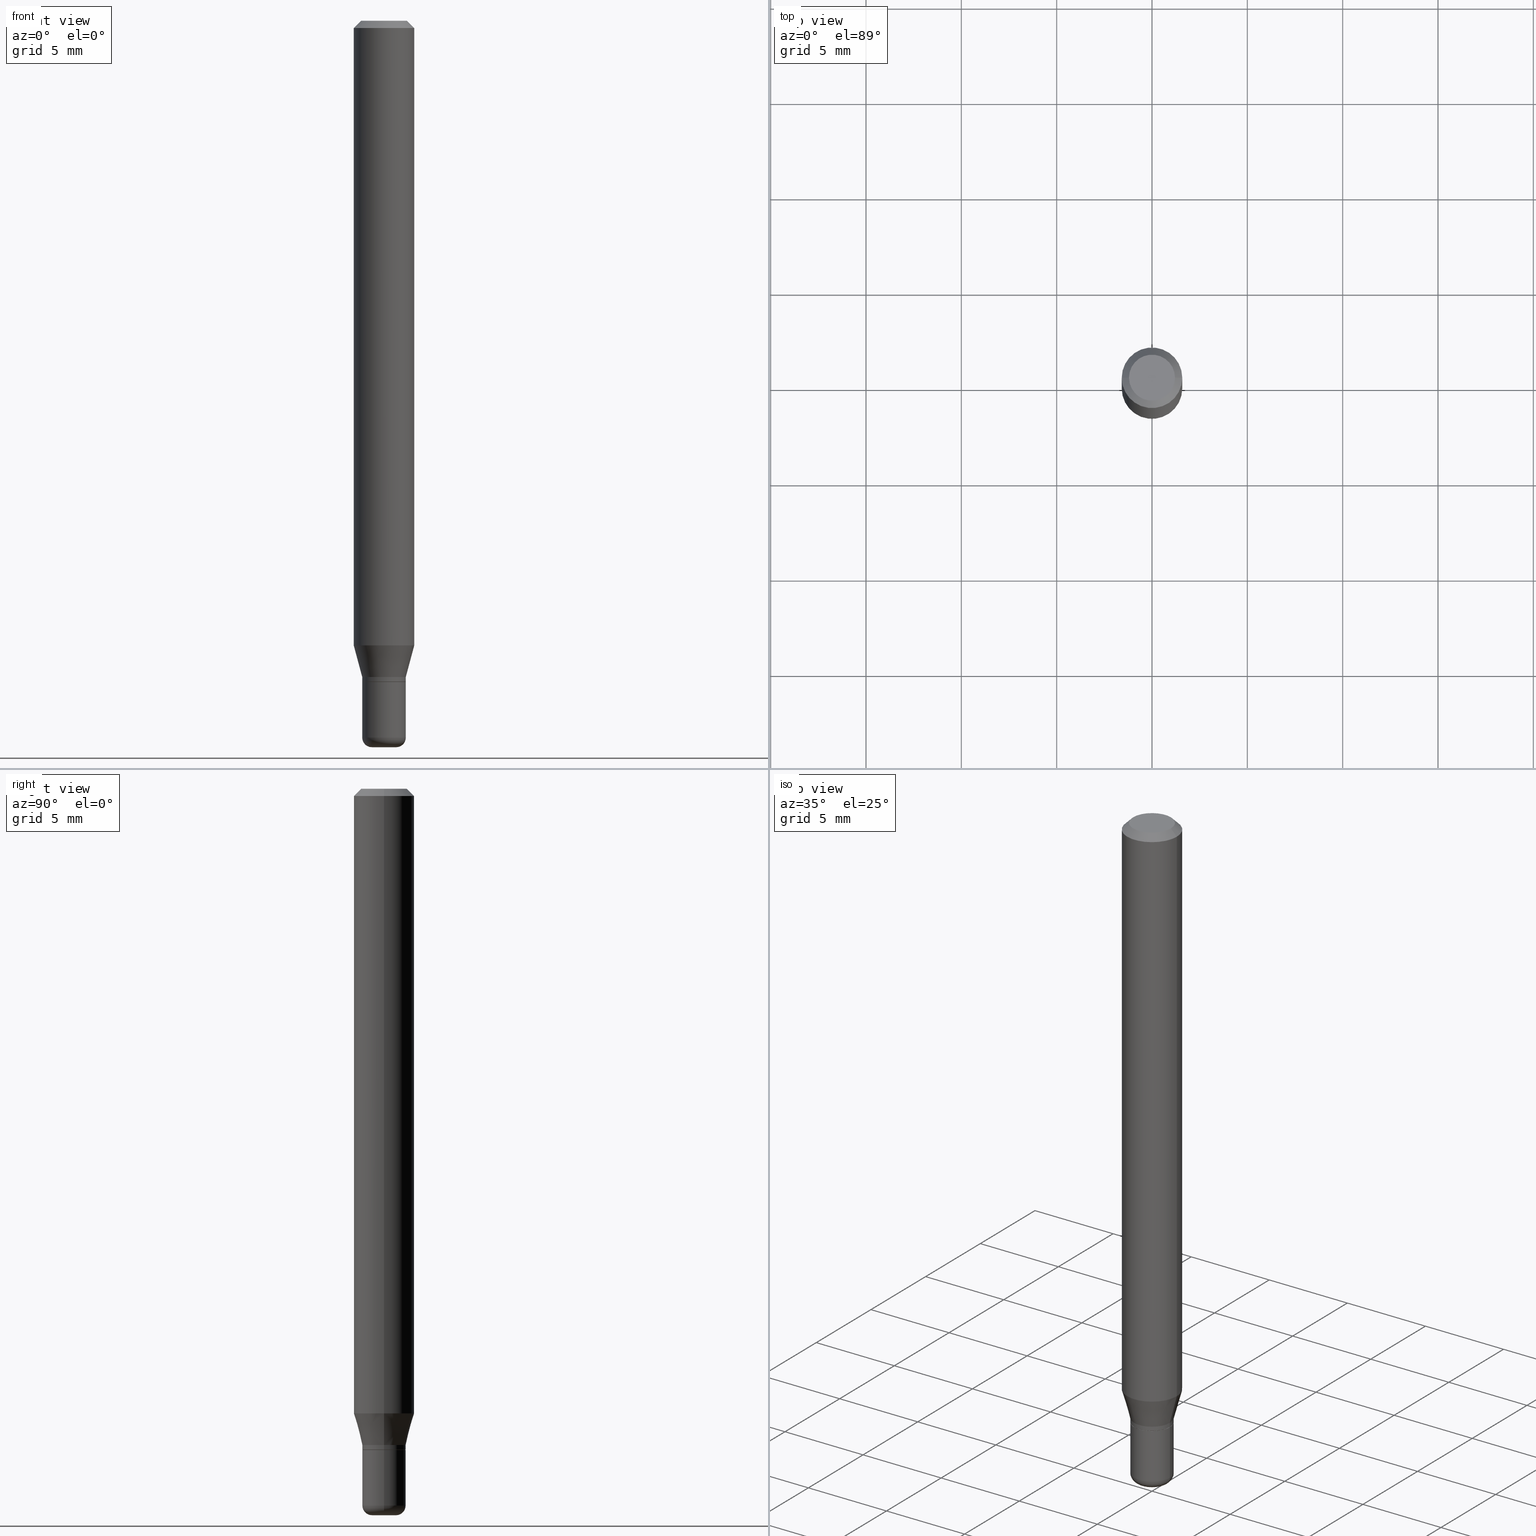
[diagram: canonical four-view strip — front | top / right | iso, engineering-drawing reading convention]
A machine part, canonical four-view strip (front | top / right | iso — engineering-drawing reading convention). The complete STEP part file that produces these views, byte-faithful:
ISO-10303-21;
HEADER;
FILE_DESCRIPTION (( 'STEP AP203' ),
    '1' );
FILE_NAME ('09066.STEP',
    '2024-02-29T21:46:44',
    ( '' ),
    ( '' ),
    'SwSTEP 2.0',
    'SolidWorks 2023',
    '' );
FILE_SCHEMA (( 'CONFIG_CONTROL_DESIGN' ));
ENDSEC;

DATA;
#1 = EDGE_CURVE ( 'NONE', #77, #320, #130, .T. ) ;
#2 = DIRECTION ( 'NONE',  ( 1.000000000000000000, -6.982962677686265922E-15, 4.876176775795935793E-29 ) ) ;
#3 = FACE_OUTER_BOUND ( 'NONE', #114, .T. ) ;
#4 = DIRECTION ( 'NONE',  ( 1.000000000000000000, -6.982962677686276177E-15, 0.000000000000000000 ) ) ;
#5 = AXIS2_PLACEMENT_3D ( 'NONE', #448, #91, #97 ) ;
#6 = LENGTH_MEASURE_WITH_UNIT ( LENGTH_MEASURE( 0.02539999999999999897 ), #450 );
#7 = AXIS2_PLACEMENT_3D ( 'NONE', #451, #481, #419 ) ;
#8 = APPROVAL_PERSON_ORGANIZATION ( #311, #154, #342 ) ;
#9 = APPLICATION_PROTOCOL_DEFINITION ( 'international standard', 'config_control_design', 1994, #255 ) ;
#10 = EDGE_CURVE ( 'NONE', #395, #471, #139, .T. ) ;
#11 = CARTESIAN_POINT ( 'NONE',  ( 0.04499999999999999833, -5.080105348016775756E-15, -1.364999999999999991 ) ) ;
#12 = VERTEX_POINT ( 'NONE', #491 ) ;
#13 = EDGE_CURVE ( 'NONE', #193, #95, #89, .T. ) ;
#14 = ORIENTED_EDGE ( 'NONE', *, *, #460, .T. ) ;
#15 = AXIS2_PLACEMENT_3D ( 'NONE', #108, #198, #436 ) ;
#16 = DIRECTION ( 'NONE',  ( -2.445468806185136597E-29, 3.491481338843145583E-15, 1.000000000000000000 ) ) ;
#17 = EDGE_CURVE ( 'NONE', #410, #320, #327, .T. ) ;
#18 = CARTESIAN_POINT ( 'NONE',  ( -0.04450000000000001177, -4.449680510107648811E-15, -1.364999999999999991 ) ) ;
#19 = PERSON_AND_ORGANIZATION_ROLE ( 'creator' ) ;
#20 = CARTESIAN_POINT ( 'NONE',  ( 0.04500000000000002609, -3.142333204958821795E-16, 2.194279549108172368E-30 ) ) ;
#21 = EDGE_CURVE ( 'NONE', #320, #77, #515, .T. ) ;
#22 = APPLICATION_PROTOCOL_DEFINITION ( 'international standard', 'config_control_design', 1994, #203 ) ;
#23 = CARTESIAN_POINT ( 'NONE',  ( -0.02499999999999999792, -4.989756697547830463E-15, -1.479999999999999982 ) ) ;
#24 = VECTOR ( 'NONE', #470, 39.37007874015748143 ) ;
#25 = CC_DESIGN_DATE_AND_TIME_ASSIGNMENT ( #503, #143, ( #434 ) ) ;
#26 = COORDINATED_UNIVERSAL_TIME_OFFSET ( 5, 0, .BEHIND. ) ;
#27 = CARTESIAN_POINT ( 'NONE',  ( -6.680649051745406845E-45, 9.538196290434862081E-31, 2.731847993664263218E-16 ) ) ;
#28 = COORDINATED_UNIVERSAL_TIME_OFFSET ( 5, 0, .BEHIND. ) ;
#29 = CARTESIAN_POINT ( 'NONE',  ( -0.06250000000000000000, 3.840629472727455270E-16, -0.01499999999999970281 ) ) ;
#30 = ORIENTED_EDGE ( 'NONE', *, *, #252, .F. ) ;
#31 = PERSON_AND_ORGANIZATION ( #65, #408 ) ;
#32 = CARTESIAN_POINT ( 'NONE',  ( -0.04500000000000003303, -4.411212983040417053E-15, -1.355000000000000204 ) ) ;
#33 = ORIENTED_EDGE ( 'NONE', *, *, #21, .T. ) ;
#34 = AXIS2_PLACEMENT_3D ( 'NONE', #141, #487, #296 ) ;
#35 = AXIS2_PLACEMENT_3D ( 'NONE', #148, #304, #461 ) ;
#36 = PRODUCT ( '09066', '09066', '', ( #485 ) ) ;
#37 = CARTESIAN_POINT ( 'NONE',  ( 3.619293833154002365E-29, -5.167392381487854879E-15, -1.479999999999999982 ) ) ;
#38 = EDGE_LOOP ( 'NONE', ( #494, #234 ) ) ;
#39 = FACE_OUTER_BOUND ( 'NONE', #385, .T. ) ;
#40 = EDGE_LOOP ( 'NONE', ( #199, #465, #350, #279 ) ) ;
#41 = DIRECTION ( 'NONE',  ( 1.000000000000000000, -6.982962677686266711E-15, 4.876176775795935793E-29 ) ) ;
#42 = ORIENTED_EDGE ( 'NONE', *, *, #424, .T. ) ;
#43 = APPROVAL ( #182, 'UNSPECIFIED' ) ;
#44 = DIRECTION ( 'NONE',  ( -2.445468806185136597E-29, 3.491481338843145583E-15, 1.000000000000000000 ) ) ;
#45 = CIRCLE ( 'NONE', #111, 0.04499999999999999833 ) ;
#46 = DIRECTION ( 'NONE',  ( 0.7071067811865479058, -7.319954787623257623E-15, -0.7071067811865471286 ) ) ;
#47 = LINE ( 'NONE', #127, #24 ) ;
#48 = ORIENTED_EDGE ( 'NONE', *, *, #263, .T. ) ;
#49 = ADVANCED_BREP_SHAPE_REPRESENTATION ( '09066', ( #74, #245, #5 ), #498 ) ;
#50 = DIRECTION ( 'NONE',  ( 1.000000000000000000, -6.982962677686265922E-15, 4.876176775795935793E-29 ) ) ;
#51 = CIRCLE ( 'NONE', #495, 0.04750000000000000749 ) ;
#52 = DIRECTION ( 'NONE',  ( -2.445468806185136597E-29, 3.491481338843145583E-15, 1.000000000000000000 ) ) ;
#53 = AXIS2_PLACEMENT_3D ( 'NONE', #27, #192, #426 ) ;
#54 = DIRECTION ( 'NONE',  ( -2.445468806185136597E-29, 3.491481338843145583E-15, 1.000000000000000000 ) ) ;
#55 = CARTESIAN_POINT ( 'NONE',  ( 3.142333204959153116E-16, 0.04499999999999523131, -1.365000000000000435 ) ) ;
#56 = EDGE_LOOP ( 'NONE', ( #452, #315, #161, #375 ) ) ;
#57 = EDGE_LOOP ( 'NONE', ( #322, #427, #347, #511 ) ) ;
#58 = CLOSED_SHELL ( 'NONE', ( #447, #393, #70, #453, #176, #370, #110, #378, #166, #394, #368, #345 ) ) ;
#59 = CIRCLE ( 'NONE', #53, 0.04750000000000000749 ) ;
#60 = PRODUCT_DEFINITION_FORMATION_WITH_SPECIFIED_SOURCE ( 'ANY', '', #36, .NOT_KNOWN. ) ;
#61 = CARTESIAN_POINT ( 'NONE',  ( 0.000000000000000000, 0.000000000000000000, 0.000000000000000000 ) ) ;
#62 = EDGE_LOOP ( 'NONE', ( #232, #313, #369, #505 ) ) ;
#63 = DIRECTION ( 'NONE',  ( -1.000000000000000000, 7.105427357601009747E-15, 0.000000000000000000 ) ) ;
#64 = DATE_TIME_ROLE ( 'classification_date' ) ;
#65 = PERSON ( 'UNSPECIFIED', 'UNSPECIFIED', 'UNSPECIFIED', ('UNSPECIFIED'), ('UNSPECIFIED'), ('UNSPECIFIED') ) ;
#66 = FACE_OUTER_BOUND ( 'NONE', #56, .T. ) ;
#67 = VECTOR ( 'NONE', #196, 39.37007874015748143 ) ;
#68 = CARTESIAN_POINT ( 'NONE',  ( 3.668203209277704895E-29, -5.237222008264718177E-15, -1.500000000000000222 ) ) ;
#69 = VERTEX_POINT ( 'NONE', #261 ) ;
#70 = ADVANCED_FACE ( 'NONE', ( #202 ), #406, .T. ) ;
#71 = CALENDAR_DATE ( 2024, 29, 2 ) ;
#72 = DIRECTION ( 'NONE',  ( -2.445468806185136597E-29, 3.491481338843145583E-15, 1.000000000000000000 ) ) ;
#73 = ORIENTED_EDGE ( 'NONE', *, *, #107, .T. ) ;
#74 = MANIFOLD_SOLID_BREP ( 'Body-Move/Copy2[1]', #456 ) ;
#75 = DIRECTION ( 'NONE',  ( 1.000000000000000000, -6.982962677686269077E-15, 0.000000000000000000 ) ) ;
#76 = CIRCLE ( 'NONE', #472, 0.04500000000000003303 ) ;
#77 = VERTEX_POINT ( 'NONE', #254 ) ;
#78 = AXIS2_PLACEMENT_3D ( 'NONE', #68, #499, #383 ) ;
#79 = CARTESIAN_POINT ( 'NONE',  ( 0.04450000000000001177, -5.076613866677932749E-15, -1.364999999999999991 ) ) ;
#80 = ADVANCED_FACE ( 'NONE', ( #3 ), #293, .T. ) ;
#81 = EDGE_LOOP ( 'NONE', ( #30, #435, #361, #318 ) ) ;
#82 = FACE_OUTER_BOUND ( 'NONE', #239, .T. ) ;
#83 = ORIENTED_EDGE ( 'NONE', *, *, #147, .F. ) ;
#84 = DIRECTION ( 'NONE',  ( 1.000000000000000000, -6.982962677686263555E-15, 0.000000000000000000 ) ) ;
#85 = DIRECTION ( 'NONE',  ( -2.445468806185136877E-29, 3.491481338843145188E-15, 1.000000000000000000 ) ) ;
#86 = CONICAL_SURFACE ( 'NONE', #294, 0.04450000000000001177, 0.7853981633972775267 ) ;
#87 = LINE ( 'NONE', #392, #278 ) ;
#88 = CONICAL_SURFACE ( 'NONE', #328, 0.04500000000000003303, 0.2617993877991494078 ) ;
#89 = LINE ( 'NONE', #18, #258 ) ;
#90 = CARTESIAN_POINT ( 'NONE',  ( 0.000000000000000000, 0.000000000000000000, 0.000000000000000000 ) ) ;
#91 = DIRECTION ( 'NONE',  ( 0.000000000000000000, 0.000000000000000000, 1.000000000000000000 ) ) ;
#92 = PLANE ( 'NONE',  #179 ) ;
#93 = AXIS2_PLACEMENT_3D ( 'NONE', #429, #194, #116 ) ;
#94 = FACE_OUTER_BOUND ( 'NONE', #224, .T. ) ;
#95 = VERTEX_POINT ( 'NONE', #183 ) ;
#96 = EDGE_CURVE ( 'NONE', #509, #471, #230, .T. ) ;
#97 = DIRECTION ( 'NONE',  ( 1.000000000000000000, 0.000000000000000000, 0.000000000000000000 ) ) ;
#98 = ORIENTED_EDGE ( 'NONE', *, *, #136, .T. ) ;
#99 = CYLINDRICAL_SURFACE ( 'NONE', #175, 0.06250000000000000000 ) ;
#100 = DIRECTION ( 'NONE',  ( -2.445468806185136597E-29, 3.491481338843145583E-15, 1.000000000000000000 ) ) ;
#101 = AXIS2_PLACEMENT_3D ( 'NONE', #235, #201, #439 ) ;
#102 = EDGE_CURVE ( 'NONE', #395, #95, #365, .T. ) ;
#103 = PERSON_AND_ORGANIZATION ( #65, #408 ) ;
#104 = DIRECTION ( 'NONE',  ( -2.445468806185136597E-29, 3.491481338843145583E-15, 1.000000000000000000 ) ) ;
#105 = ORIENTED_EDGE ( 'NONE', *, *, #424, .F. ) ;
#106 = PERSON_AND_ORGANIZATION_ROLE ( 'creator' ) ;
#107 = EDGE_CURVE ( 'NONE', #12, #410, #59, .T. ) ;
#108 = CARTESIAN_POINT ( 'NONE',  ( 3.153894490303225812E-29, -4.502925463503242152E-15, -1.289689110867545008 ) ) ;
#109 = CARTESIAN_POINT ( 'NONE',  ( -0.04450000000000001177, -4.447031282933537610E-15, -1.364999999999999991 ) ) ;
#110 = ADVANCED_FACE ( 'NONE', ( #66 ), #226, .T. ) ;
#111 = AXIS2_PLACEMENT_3D ( 'NONE', #490, #246, #140 ) ;
#112 = CARTESIAN_POINT ( 'NONE',  ( 3.668203209277704895E-29, -5.237222008264718177E-15, -1.500000000000000222 ) ) ;
#113 = ADVANCED_FACE ( 'NONE', ( #349 ), #228, .T. ) ;
#114 = EDGE_LOOP ( 'NONE', ( #142, #215, #117, #217 ) ) ;
#115 = PERSON_AND_ORGANIZATION ( #65, #408 ) ;
#116 = DIRECTION ( 'NONE',  ( 1.000000000000000000, -6.982962677686263555E-15, 0.000000000000000000 ) ) ;
#117 = ORIENTED_EDGE ( 'NONE', *, *, #128, .F. ) ;
#118 = CARTESIAN_POINT ( 'NONE',  ( 0.04500000000000003303, -5.045190534628344896E-15, -1.355000000000000204 ) ) ;
#119 = ORIENTED_EDGE ( 'NONE', *, *, #128, .T. ) ;
#120 = AXIS2_PLACEMENT_3D ( 'NONE', #377, #219, #343 ) ;
#121 = EDGE_CURVE ( 'NONE', #156, #193, #506, .T. ) ;
#122 = LINE ( 'NONE', #118, #407 ) ;
#123 = CC_DESIGN_PERSON_AND_ORGANIZATION_ASSIGNMENT ( #420, #19, ( #60 ) ) ;
#124 = ORIENTED_EDGE ( 'NONE', *, *, #440, .T. ) ;
#125 = CARTESIAN_POINT ( 'NONE',  ( 3.668203209277632395E-31, -5.237222008264614861E-17, -0.01499999999999970281 ) ) ;
#126 = VERTEX_POINT ( 'NONE', #307 ) ;
#127 = CARTESIAN_POINT ( 'NONE',  ( -0.04500000000000001221, 3.197442310920451704E-16, -2.213520790614708260E-30 ) ) ;
#128 = EDGE_CURVE ( 'NONE', #297, #256, #425, .T. ) ;
#129 = DIRECTION ( 'NONE',  ( 1.000000000000000000, -6.982962677686262766E-15, 4.883557194083111780E-29 ) ) ;
#130 = CIRCLE ( 'NONE', #207, 0.06250000000000000000 ) ;
#131 = CIRCLE ( 'NONE', #443, 0.04450000000000001177 ) ;
#132 = CARTESIAN_POINT ( 'NONE',  ( 0.06250000000000000000, -4.888073874380378612E-16, -0.01499999999999970281 ) ) ;
#133 = DIRECTION ( 'NONE',  ( 1.000000000000000000, -6.982962677686266711E-15, 4.876176775795935793E-29 ) ) ;
#134 = DIRECTION ( 'NONE',  ( 2.438088387897960049E-29, -3.491481338843145188E-15, -1.000000000000000000 ) ) ;
#135 = AXIS2_PLACEMENT_3D ( 'NONE', #212, #100, #129 ) ;
#136 = EDGE_CURVE ( 'NONE', #193, #156, #131, .T. ) ;
#137 = CIRCLE ( 'NONE', #269, 0.04500000000000001221 ) ;
#138 = DIRECTION ( 'NONE',  ( 1.000000000000000000, -6.982962677686266711E-15, 0.000000000000000000 ) ) ;
#139 = LINE ( 'NONE', #20, #414 ) ;
#140 = DIRECTION ( 'NONE',  ( 1.000000000000000000, -6.982962677686269077E-15, 0.000000000000000000 ) ) ;
#141 = CARTESIAN_POINT ( 'NONE',  ( 3.668203209277632395E-31, -5.237222008264614861E-17, -0.01499999999999970281 ) ) ;
#142 = ORIENTED_EDGE ( 'NONE', *, *, #209, .T. ) ;
#143 = DATE_TIME_ROLE ( 'creation_date' ) ;
#144 = DIRECTION ( 'NONE',  ( -2.445468806185136877E-29, 3.491481338843145188E-15, 1.000000000000000000 ) ) ;
#145 = AXIS2_PLACEMENT_3D ( 'NONE', #153, #464, #75 ) ;
#146 = SECURITY_CLASSIFICATION ( '', '', #466 ) ;
#147 = EDGE_CURVE ( 'NONE', #256, #297, #214, .T. ) ;
#148 = CARTESIAN_POINT ( 'NONE',  ( 3.153894490303225812E-29, -4.502925463503242152E-15, -1.289689110867545008 ) ) ;
#149 = APPROVAL_DATE_TIME ( #493, #501 ) ;
#150 = PLANE ( 'NONE',  #231 ) ;
#151 = UNCERTAINTY_MEASURE_WITH_UNIT (LENGTH_MEASURE( 1.000000000000000082E-05 ), #371, 'distance_accuracy_value', 'NONE');
#152 = APPROVAL_DATE_TIME ( #274, #154 ) ;
#153 = CARTESIAN_POINT ( 'NONE',  ( 3.338064920442711836E-29, -4.765872027520893280E-15, -1.364999999999999991 ) ) ;
#154 = APPROVAL ( #270, 'UNSPECIFIED' ) ;
#155 = AXIS2_PLACEMENT_3D ( 'NONE', #351, #381, #467 ) ;
#156 = VERTEX_POINT ( 'NONE', #158 ) ;
#157 = DATE_AND_TIME ( #344, #249 ) ;
#158 = CARTESIAN_POINT ( 'NONE',  ( 0.04450000000000001177, -5.076613866677932749E-15, -1.364999999999999991 ) ) ;
#159 = ORIENTED_EDGE ( 'NONE', *, *, #473, .F. ) ;
#160 = CARTESIAN_POINT ( 'NONE',  ( 0.04750000000000000749, -4.035134999187568762E-16, 2.731847993664288856E-16 ) ) ;
#161 = ORIENTED_EDGE ( 'NONE', *, *, #355, .T. ) ;
#162 = PRODUCT_RELATED_PRODUCT_CATEGORY ( 'detail', '', ( #36 ) ) ;
#163 = DIRECTION ( 'NONE',  ( 0.2588190451025206840, 1.565188264969626504E-15, 0.9659258262890682012 ) ) ;
#164 = EDGE_LOOP ( 'NONE', ( #73, #14 ) ) ;
#165 = AXIS2_PLACEMENT_3D ( 'NONE', #125, #238, #403 ) ;
#166 = ADVANCED_FACE ( 'NONE', ( #264 ), #150, .F. ) ;
#167 = FACE_OUTER_BOUND ( 'NONE', #81, .T. ) ;
#168 = ORIENTED_EDGE ( 'NONE', *, *, #236, .T. ) ;
#169 = DIRECTION ( 'NONE',  ( 1.000000000000000000, -6.982962677686276177E-15, 0.000000000000000000 ) ) ;
#170 = EDGE_CURVE ( 'NONE', #391, #256, #302, .T. ) ;
#171 = DIRECTION ( 'NONE',  ( -0.7071067811864267805, 7.493145998869918709E-15, 0.7071067811866682540 ) ) ;
#172 = DIRECTION ( 'NONE',  ( -2.438088387897960049E-29, 3.491481338843145188E-15, 1.000000000000000000 ) ) ;
#173 = VECTOR ( 'NONE', #442, 39.37007874015748143 ) ;
#174 = CARTESIAN_POINT ( 'NONE',  ( 3.313610232380860851E-29, -4.730957214132463209E-15, -1.355000000000000204 ) ) ;
#175 = AXIS2_PLACEMENT_3D ( 'NONE', #61, #54, #418 ) ;
#176 = ADVANCED_FACE ( 'NONE', ( #306 ), #463, .T. ) ;
#177 = DIRECTION ( 'NONE',  ( -2.445468806185136597E-29, 3.491481338843145583E-15, 1.000000000000000000 ) ) ;
#178 = EDGE_LOOP ( 'NONE', ( #119, #438, #469, #191 ) ) ;
#179 = AXIS2_PLACEMENT_3D ( 'NONE', #55, #134, #295 ) ;
#180 = ORIENTED_EDGE ( 'NONE', *, *, #460, .F. ) ;
#181 = ORIENTED_EDGE ( 'NONE', *, *, #281, .F. ) ;
#182 = APPROVAL_STATUS ( 'not_yet_approved' ) ;
#183 = CARTESIAN_POINT ( 'NONE',  ( -0.04500000000000001221, -4.444382055759425620E-15, -1.364499999999999824 ) ) ;
#184 = PERSON_AND_ORGANIZATION_ROLE ( 'classification_officer' ) ;
#185 = LINE ( 'NONE', #29, #260 ) ;
#186 = CONICAL_SURFACE ( 'NONE', #475, 0.04450000000000001177, 0.7853981633972775267 ) ;
#187 = COORDINATED_UNIVERSAL_TIME_OFFSET ( 5, 0, .BEHIND. ) ;
#188 = DIRECTION ( 'NONE',  ( -2.445468806185136597E-29, 3.491481338843145583E-15, 1.000000000000000000 ) ) ;
#189 = PERSON_AND_ORGANIZATION_ROLE ( 'design_supplier' ) ;
#190 = LINE ( 'NONE', #341, #287 ) ;
#191 = ORIENTED_EDGE ( 'NONE', *, *, #440, .F. ) ;
#192 = DIRECTION ( 'NONE',  ( -2.445468806185136597E-29, 3.491481338843145583E-15, 1.000000000000000000 ) ) ;
#193 = VERTEX_POINT ( 'NONE', #109 ) ;
#194 = DIRECTION ( 'NONE',  ( -2.445468806185136597E-29, 3.491481338843145583E-15, 1.000000000000000000 ) ) ;
#195 = ORIENTED_EDGE ( 'NONE', *, *, #209, .F. ) ;
#196 = DIRECTION ( 'NONE',  ( 0.7071067811864267805, -2.468850131080992517E-15, 0.7071067811866682540 ) ) ;
#197 = ORIENTED_EDGE ( 'NONE', *, *, #13, .F. ) ;
#198 = DIRECTION ( 'NONE',  ( -2.445468806185136597E-29, 3.491481338843145583E-15, 1.000000000000000000 ) ) ;
#199 = ORIENTED_EDGE ( 'NONE', *, *, #17, .F. ) ;
#200 = AXIS2_PLACEMENT_3D ( 'NONE', #23, #389, #63 ) ;
#201 = DIRECTION ( 'NONE',  ( -6.982962677686266711E-15, -1.000000000000000000, 3.491481338843145583E-15 ) ) ;
#202 = FACE_OUTER_BOUND ( 'NONE', #243, .T. ) ;
#203 = APPLICATION_CONTEXT ( 'configuration controlled 3d designs of mechanical parts and assemblies' ) ;
#204 = EDGE_CURVE ( 'NONE', #397, #77, #190, .T. ) ;
#205 = CARTESIAN_POINT ( 'NONE',  ( 3.619293833154002365E-29, -5.167392381487854879E-15, -1.479999999999999982 ) ) ;
#206 = CARTESIAN_POINT ( 'NONE',  ( 0.04500000000000001221, -5.078359607347354252E-15, -1.364499999999999824 ) ) ;
#207 = AXIS2_PLACEMENT_3D ( 'NONE', #376, #332, #138 ) ;
#208 = CARTESIAN_POINT ( 'NONE',  ( 0.04500000000000003303, -5.045190534628344896E-15, -1.355000000000000204 ) ) ;
#209 = EDGE_CURVE ( 'NONE', #272, #391, #482, .T. ) ;
#210 = DIRECTION ( 'NONE',  ( -2.445468806185136597E-29, 3.491481338843145583E-15, 1.000000000000000000 ) ) ;
#211 = ORIENTED_EDGE ( 'NONE', *, *, #96, .F. ) ;
#212 = CARTESIAN_POINT ( 'NONE',  ( 3.619293833154002365E-29, -5.167392381487854879E-15, -1.479999999999999982 ) ) ;
#213 = FACE_OUTER_BOUND ( 'NONE', #178, .T. ) ;
#214 = CIRCLE ( 'NONE', #120, 0.04500000000000003303 ) ;
#215 = ORIENTED_EDGE ( 'NONE', *, *, #170, .T. ) ;
#216 = PERSON_AND_ORGANIZATION ( #65, #408 ) ;
#217 = ORIENTED_EDGE ( 'NONE', *, *, #309, .F. ) ;
#218 = PERSON_AND_ORGANIZATION ( #65, #408 ) ;
#219 = DIRECTION ( 'NONE',  ( -2.445468806185136597E-29, 3.491481338843145583E-15, 1.000000000000000000 ) ) ;
#220 = CALENDAR_DATE ( 2024, 29, 2 ) ;
#221 = DIRECTION ( 'NONE',  ( 1.000000000000000000, -6.982962677686276177E-15, 0.000000000000000000 ) ) ;
#222 = AXIS2_PLACEMENT_3D ( 'NONE', #37, #459, #303 ) ;
#223 = DIRECTION ( 'NONE',  ( -1.000000000000000000, 6.982962677686265922E-15, -4.876176775795935793E-29 ) ) ;
#224 = EDGE_LOOP ( 'NONE', ( #334, #477, #159, #330 ) ) ;
#225 = COORDINATED_UNIVERSAL_TIME_OFFSET ( 5, 0, .BEHIND. ) ;
#226 = CYLINDRICAL_SURFACE ( 'NONE', #155, 0.06250000000000000000 ) ;
#227 = EDGE_LOOP ( 'NONE', ( #48, #489, #237, #354 ) ) ;
#228 = CYLINDRICAL_SURFACE ( 'NONE', #241, 0.04500000000000001221 ) ;
#229 = CC_DESIGN_APPROVAL ( #501, ( #434 ) ) ;
#230 = CIRCLE ( 'NONE', #301, 0.04500000000000003303 ) ;
#231 = AXIS2_PLACEMENT_3D ( 'NONE', #421, #312, #223 ) ;
#232 = ORIENTED_EDGE ( 'NONE', *, *, #473, .T. ) ;
#233 = DIRECTION ( 'NONE',  ( 1.000000000000000000, -6.982962677686262766E-15, 4.883557194083111780E-29 ) ) ;
#234 = ORIENTED_EDGE ( 'NONE', *, *, #428, .T. ) ;
#235 = CARTESIAN_POINT ( 'NONE',  ( 0.02499999999999999792, -5.341966448430011546E-15, -1.479999999999999982 ) ) ;
#236 = EDGE_CURVE ( 'NONE', #391, #272, #458, .T. ) ;
#237 = ORIENTED_EDGE ( 'NONE', *, *, #21, .F. ) ;
#238 = DIRECTION ( 'NONE',  ( 2.445468806185136597E-29, -3.491481338843145583E-15, -1.000000000000000000 ) ) ;
#239 = EDGE_LOOP ( 'NONE', ( #496, #42, #388, #211 ) ) ;
#240 = EDGE_CURVE ( 'NONE', #12, #77, #185, .T. ) ;
#241 = AXIS2_PLACEMENT_3D ( 'NONE', #508, #502, #265 ) ;
#242 = DIRECTION ( 'NONE',  ( -2.445468806185136597E-29, 3.491481338843145583E-15, 1.000000000000000000 ) ) ;
#243 = EDGE_LOOP ( 'NONE', ( #180, #300, #33, #413 ) ) ;
#244 = CARTESIAN_POINT ( 'NONE',  ( -0.02500000000000000139, -4.953617237360251242E-15, -1.500000000000000222 ) ) ;
#245 = MANIFOLD_SOLID_BREP ( 'Body-Move/Copy2[2]', #58 ) ;
#246 = DIRECTION ( 'NONE',  ( -2.445468806185136597E-29, 3.491481338843145583E-15, 1.000000000000000000 ) ) ;
#247 = EDGE_CURVE ( 'NONE', #430, #69, #366, .T. ) ;
#248 = CC_DESIGN_PERSON_AND_ORGANIZATION_ASSIGNMENT ( #103, #106, ( #434 ) ) ;
#249 = LOCAL_TIME ( 16, 46, 44.00000000000000000, #187 ) ;
#250 = CIRCLE ( 'NONE', #35, 0.06250000000000000000 ) ;
#251 = CARTESIAN_POINT ( 'NONE',  ( -0.04500000000000003303, -4.235024618346798294E-15, -1.355000000000000204 ) ) ;
#252 = EDGE_CURVE ( 'NONE', #509, #397, #387, .T. ) ;
#253 = CYLINDRICAL_SURFACE ( 'NONE', #483, 0.04500000000000002609 ) ;
#254 = CARTESIAN_POINT ( 'NONE',  ( -0.06250000000000000000, -1.833559631942881408E-15, -0.01499999999999970281 ) ) ;
#255 = APPLICATION_CONTEXT ( 'configuration controlled 3d designs of mechanical parts and assemblies' ) ;
#256 = VERTEX_POINT ( 'NONE', #431 ) ;
#257 = EDGE_CURVE ( 'NONE', #397, #126, #250, .T. ) ;
#258 = VECTOR ( 'NONE', #171, 39.37007874015748143 ) ;
#259 = FACE_OUTER_BOUND ( 'NONE', #38, .T. ) ;
#260 = VECTOR ( 'NONE', #504, 39.37007874015748143 ) ;
#261 = CARTESIAN_POINT ( 'NONE',  ( -0.04499999999999999833, -4.646887973412328712E-15, -1.364999999999999991 ) ) ;
#262 = SHAPE_DEFINITION_REPRESENTATION ( #468, #49 ) ;
#263 = EDGE_CURVE ( 'NONE', #126, #397, #497, .T. ) ;
#264 = FACE_OUTER_BOUND ( 'NONE', #164, .T. ) ;
#265 = DIRECTION ( 'NONE',  ( 1.000000000000000000, -6.982962677686267499E-15, 4.876176775795935793E-29 ) ) ;
#266 = PERSON_AND_ORGANIZATION ( #65, #408 ) ;
#267 = DIRECTION ( 'NONE',  ( 1.000000000000000000, -6.982962677686254878E-15, 0.000000000000000000 ) ) ;
#268 = AXIS2_PLACEMENT_3D ( 'NONE', #286, #444, #423 ) ;
#269 = AXIS2_PLACEMENT_3D ( 'NONE', #280, #299, #409 ) ;
#270 = APPROVAL_STATUS ( 'not_yet_approved' ) ;
#271 = CARTESIAN_POINT ( 'NONE',  ( 3.338064920442711836E-29, -4.765872027520893280E-15, -1.364999999999999991 ) ) ;
#272 = VERTEX_POINT ( 'NONE', #314 ) ;
#273 = ADVANCED_FACE ( 'NONE', ( #513 ), #283, .F. ) ;
#274 = DATE_AND_TIME ( #386, #364 ) ;
#275 = DIRECTION ( 'NONE',  ( -0.2588190451025206840, 5.211531920934545520E-15, 0.9659258262890682012 ) ) ;
#276 = ORIENTED_EDGE ( 'NONE', *, *, #136, .F. ) ;
#277 = CARTESIAN_POINT ( 'NONE',  ( 3.338064920442711836E-29, -4.765872027520893280E-15, -1.364999999999999991 ) ) ;
#278 = VECTOR ( 'NONE', #360, 39.37007874015748143 ) ;
#279 = ORIENTED_EDGE ( 'NONE', *, *, #1, .T. ) ;
#280 = CARTESIAN_POINT ( 'NONE',  ( 3.336842186039618474E-29, -4.764126286851472566E-15, -1.364499999999999824 ) ) ;
#281 = EDGE_CURVE ( 'NONE', #256, #69, #47, .T. ) ;
#282 = ORIENTED_EDGE ( 'NONE', *, *, #147, .T. ) ;
#283 = PLANE ( 'NONE',  #488 ) ;
#284 = DIRECTION ( 'NONE',  ( 1.000000000000000000, -6.982962677686263555E-15, 0.000000000000000000 ) ) ;
#285 = CARTESIAN_POINT ( 'NONE',  ( 0.04500000000000003303, -5.481625701983737354E-15, -1.479999999999999982 ) ) ;
#286 = CARTESIAN_POINT ( 'NONE',  ( 3.336842186039618474E-29, -4.764126286851472566E-15, -1.364499999999999824 ) ) ;
#287 = VECTOR ( 'NONE', #144, 39.37007874015748143 ) ;
#288 = CC_DESIGN_APPROVAL ( #154, ( #146 ) ) ;
#289 = CARTESIAN_POINT ( 'NONE',  ( -0.04500000000000002609, 3.197442310920452690E-16, -2.213520790614708611E-30 ) ) ;
#290 =( NAMED_UNIT ( * ) SI_UNIT ( $, .STERADIAN. ) SOLID_ANGLE_UNIT ( ) );
#291 = ADVANCED_FACE ( 'NONE', ( #353 ), #374, .T. ) ;
#292 = DIRECTION ( 'NONE',  ( 1.000000000000000000, -6.982962677686267499E-15, 4.876176775795935793E-29 ) ) ;
#293 = TOROIDAL_SURFACE ( 'NONE', #135, 0.02499999999999999792, 0.02000000000000003164 ) ;
#294 = AXIS2_PLACEMENT_3D ( 'NONE', #277, #44, #4 ) ;
#295 = DIRECTION ( 'NONE',  ( -1.000000000000000000, 6.982962677686265922E-15, -4.876176775795935793E-29 ) ) ;
#296 = DIRECTION ( 'NONE',  ( 1.000000000000000000, -6.982962677686266711E-15, 0.000000000000000000 ) ) ;
#297 = VERTEX_POINT ( 'NONE', #285 ) ;
#298 = EDGE_CURVE ( 'NONE', #471, #126, #122, .T. ) ;
#299 = DIRECTION ( 'NONE',  ( -2.445468806185136597E-29, 3.491481338843145583E-15, 1.000000000000000000 ) ) ;
#300 = ORIENTED_EDGE ( 'NONE', *, *, #17, .T. ) ;
#301 = AXIS2_PLACEMENT_3D ( 'NONE', #372, #455, #284 ) ;
#302 = CIRCLE ( 'NONE', #200, 0.02000000000000003511 ) ;
#303 = DIRECTION ( 'NONE',  ( 1.000000000000000000, -6.982962677686263555E-15, 0.000000000000000000 ) ) ;
#304 = DIRECTION ( 'NONE',  ( -2.445468806185136597E-29, 3.491481338843145583E-15, 1.000000000000000000 ) ) ;
#305 = APPROVAL_ROLE ( '' ) ;
#306 = FACE_OUTER_BOUND ( 'NONE', #62, .T. ) ;
#307 = CARTESIAN_POINT ( 'NONE',  ( 0.06250000000000000000, -4.939360630858633822E-15, -1.289689110867545008 ) ) ;
#308 = AXIS2_PLACEMENT_3D ( 'NONE', #90, #357, #41 ) ;
#309 = EDGE_CURVE ( 'NONE', #272, #297, #324, .T. ) ;
#310 = EDGE_LOOP ( 'NONE', ( #197, #98, #441, #105 ) ) ;
#311 = PERSON_AND_ORGANIZATION ( #65, #408 ) ;
#312 = DIRECTION ( 'NONE',  ( 2.438088387897960049E-29, -3.491481338843145188E-15, -1.000000000000000000 ) ) ;
#313 = ORIENTED_EDGE ( 'NONE', *, *, #252, .T. ) ;
#314 = CARTESIAN_POINT ( 'NONE',  ( 0.02500000000000000139, -5.411796075206874844E-15, -1.500000000000000222 ) ) ;
#315 = ORIENTED_EDGE ( 'NONE', *, *, #257, .T. ) ;
#316 = CARTESIAN_POINT ( 'NONE',  ( 3.338064920442711836E-29, -4.765872027520893280E-15, -1.364999999999999991 ) ) ;
#317 = AXIS2_PLACEMENT_3D ( 'NONE', #363, #210, #292 ) ;
#318 = ORIENTED_EDGE ( 'NONE', *, *, #257, .F. ) ;
#319 = CYLINDRICAL_SURFACE ( 'NONE', #308, 0.04500000000000002609 ) ;
#320 = VERTEX_POINT ( 'NONE', #132 ) ;
#321 = CARTESIAN_POINT ( 'NONE',  ( 3.313610232380860851E-29, -4.730957214132463209E-15, -1.355000000000000204 ) ) ;
#322 = ORIENTED_EDGE ( 'NONE', *, *, #121, .T. ) ;
#323 = DIRECTION ( 'NONE',  ( -2.438088387897960049E-29, 3.491481338843145188E-15, 1.000000000000000000 ) ) ;
#324 = CIRCLE ( 'NONE', #101, 0.02000000000000003511 ) ;
#325 = LINE ( 'NONE', #412, #373 ) ;
#326 = DIRECTION ( 'NONE',  ( 1.000000000000000000, -6.982962677686266711E-15, 4.852736867747365086E-29 ) ) ;
#327 = LINE ( 'NONE', #400, #338 ) ;
#328 = AXIS2_PLACEMENT_3D ( 'NONE', #321, #446, #84 ) ;
#329 = DIRECTION ( 'NONE',  ( 1.000000000000000000, -6.982962677686263555E-15, 0.000000000000000000 ) ) ;
#330 = ORIENTED_EDGE ( 'NONE', *, *, #10, .F. ) ;
#331 = CARTESIAN_POINT ( 'NONE',  ( 0.000000000000000000, 0.000000000000000000, 0.000000000000000000 ) ) ;
#332 = DIRECTION ( 'NONE',  ( -2.445468806185136597E-29, 3.491481338843145583E-15, 1.000000000000000000 ) ) ;
#333 = PERSON_AND_ORGANIZATION_ROLE ( 'design_owner' ) ;
#334 = ORIENTED_EDGE ( 'NONE', *, *, #102, .T. ) ;
#335 = EDGE_CURVE ( 'NONE', #95, #509, #396, .T. ) ;
#336 = CC_DESIGN_DATE_AND_TIME_ASSIGNMENT ( #157, #64, ( #146 ) ) ;
#337 = APPROVAL_PERSON_ORGANIZATION ( #216, #43, #348 ) ;
#338 = VECTOR ( 'NONE', #46, 39.37007874015748143 ) ;
#339 = COORDINATED_UNIVERSAL_TIME_OFFSET ( 5, 0, .BEHIND. ) ;
#340 = APPROVAL_PERSON_ORGANIZATION ( #218, #501, #305 ) ;
#341 = CARTESIAN_POINT ( 'NONE',  ( -0.06250000000000000000, 4.440892098500626162E-16, -3.074334431409316114E-30 ) ) ;
#342 = APPROVAL_ROLE ( '' ) ;
#343 = DIRECTION ( 'NONE',  ( 1.000000000000000000, -6.982962677686263555E-15, 0.000000000000000000 ) ) ;
#344 = CALENDAR_DATE ( 2024, 29, 2 ) ;
#345 = ADVANCED_FACE ( 'NONE', ( #82 ), #319, .T. ) ;
#346 = DIRECTION ( 'NONE',  ( 1.000000000000000000, -6.982962677686276177E-15, 0.000000000000000000 ) ) ;
#347 = ORIENTED_EDGE ( 'NONE', *, *, #102, .F. ) ;
#348 = APPROVAL_ROLE ( '' ) ;
#349 = FACE_OUTER_BOUND ( 'NONE', #359, .T. ) ;
#350 = ORIENTED_EDGE ( 'NONE', *, *, #240, .T. ) ;
#351 = CARTESIAN_POINT ( 'NONE',  ( 0.000000000000000000, 0.000000000000000000, 0.000000000000000000 ) ) ;
#352 = ORIENTED_EDGE ( 'NONE', *, *, #236, .F. ) ;
#353 = FACE_OUTER_BOUND ( 'NONE', #432, .T. ) ;
#354 = ORIENTED_EDGE ( 'NONE', *, *, #355, .F. ) ;
#355 = EDGE_CURVE ( 'NONE', #126, #320, #87, .T. ) ;
#356 = CC_DESIGN_PERSON_AND_ORGANIZATION_ASSIGNMENT ( #266, #333, ( #36 ) ) ;
#357 = DIRECTION ( 'NONE',  ( -2.445468806185136597E-29, 3.491481338843145583E-15, 1.000000000000000000 ) ) ;
#358 = AXIS2_PLACEMENT_3D ( 'NONE', #112, #72, #267 ) ;
#359 = EDGE_LOOP ( 'NONE', ( #181, #282, #124, #402 ) ) ;
#360 = DIRECTION ( 'NONE',  ( -2.445468806185136877E-29, 3.491481338843145188E-15, 1.000000000000000000 ) ) ;
#361 = ORIENTED_EDGE ( 'NONE', *, *, #298, .T. ) ;
#362 = FACE_OUTER_BOUND ( 'NONE', #57, .T. ) ;
#363 = CARTESIAN_POINT ( 'NONE',  ( 0.000000000000000000, 0.000000000000000000, 0.000000000000000000 ) ) ;
#364 = LOCAL_TIME ( 16, 46, 44.00000000000000000, #339 ) ;
#365 = CIRCLE ( 'NONE', #268, 0.04500000000000001221 ) ;
#366 = CIRCLE ( 'NONE', #145, 0.04499999999999999833 ) ;
#367 = LOCAL_TIME ( 16, 46, 44.00000000000000000, #225 ) ;
#368 = ADVANCED_FACE ( 'NONE', ( #401 ), #186, .T. ) ;
#369 = ORIENTED_EDGE ( 'NONE', *, *, #263, .F. ) ;
#370 = ADVANCED_FACE ( 'NONE', ( #167 ), #88, .T. ) ;
#371 =( CONVERSION_BASED_UNIT ( 'INCH', #6 ) LENGTH_UNIT ( ) NAMED_UNIT ( #411 ) );
#372 = CARTESIAN_POINT ( 'NONE',  ( 3.313610232380860851E-29, -4.730957214132463209E-15, -1.355000000000000204 ) ) ;
#373 = VECTOR ( 'NONE', #449, 39.37007874015748143 ) ;
#374 = TOROIDAL_SURFACE ( 'NONE', #399, 0.02499999999999999792, 0.02000000000000003164 ) ;
#375 = ORIENTED_EDGE ( 'NONE', *, *, #1, .F. ) ;
#376 = CARTESIAN_POINT ( 'NONE',  ( 3.668203209277632395E-31, -5.237222008264614861E-17, -0.01499999999999970281 ) ) ;
#377 = CARTESIAN_POINT ( 'NONE',  ( 3.619293833154002365E-29, -5.167392381487854879E-15, -1.479999999999999982 ) ) ;
#378 = ADVANCED_FACE ( 'NONE', ( #478 ), #380, .T. ) ;
#379 = DATE_AND_TIME ( #71, #405 ) ;
#380 = CONICAL_SURFACE ( 'NONE', #165, 0.06250000000000000000, 0.7853981633974488341 ) ;
#381 = DIRECTION ( 'NONE',  ( -2.445468806185136597E-29, 3.491481338843145583E-15, 1.000000000000000000 ) ) ;
#382 = APPROVAL_DATE_TIME ( #379, #43 ) ;
#383 = DIRECTION ( 'NONE',  ( 1.000000000000000000, -6.982962677686254878E-15, 0.000000000000000000 ) ) ;
#384 = DESIGN_CONTEXT ( 'detailed design', #203, 'design' ) ;
#385 = EDGE_LOOP ( 'NONE', ( #457, #276 ) ) ;
#386 = CALENDAR_DATE ( 2024, 29, 2 ) ;
#387 = LINE ( 'NONE', #32, #390 ) ;
#388 = ORIENTED_EDGE ( 'NONE', *, *, #10, .T. ) ;
#389 = DIRECTION ( 'NONE',  ( 7.105427357601001859E-15, 1.000000000000000000, -3.491481338843145583E-15 ) ) ;
#390 = VECTOR ( 'NONE', #275, 39.37007874015748854 ) ;
#391 = VERTEX_POINT ( 'NONE', #244 ) ;
#392 = CARTESIAN_POINT ( 'NONE',  ( 0.06250000000000000000, -4.364351673553916694E-16, 3.047610484872459871E-30 ) ) ;
#393 = ADVANCED_FACE ( 'NONE', ( #362 ), #86, .T. ) ;
#394 = ADVANCED_FACE ( 'NONE', ( #39 ), #480, .F. ) ;
#395 = VERTEX_POINT ( 'NONE', #206 ) ;
#396 = LINE ( 'NONE', #289, #173 ) ;
#397 = VERTEX_POINT ( 'NONE', #510 ) ;
#398 = DIRECTION ( 'NONE',  ( -2.445468806185136597E-29, 3.491481338843145583E-15, 1.000000000000000000 ) ) ;
#399 = AXIS2_PLACEMENT_3D ( 'NONE', #205, #242, #233 ) ;
#400 = CARTESIAN_POINT ( 'NONE',  ( 0.06250000000000000000, -4.811533449433669144E-16, -0.01499999999999970281 ) ) ;
#401 = FACE_OUTER_BOUND ( 'NONE', #310, .T. ) ;
#402 = ORIENTED_EDGE ( 'NONE', *, *, #428, .F. ) ;
#403 = DIRECTION ( 'NONE',  ( -1.000000000000000000, 6.982962677686266711E-15, 0.000000000000000000 ) ) ;
#404 = CARTESIAN_POINT ( 'NONE',  ( -6.680649051745406845E-45, 9.538196290434862081E-31, 2.731847993664263218E-16 ) ) ;
#405 = LOCAL_TIME ( 16, 46, 44.00000000000000000, #28 ) ;
#406 = CONICAL_SURFACE ( 'NONE', #7, 0.06250000000000000000, 0.7853981633974488341 ) ;
#407 = VECTOR ( 'NONE', #163, 39.37007874015748854 ) ;
#408 = ORGANIZATION ( 'UNSPECIFIED', 'UNSPECIFIED', '' ) ;
#409 = DIRECTION ( 'NONE',  ( 1.000000000000000000, -6.982962677686266711E-15, 0.000000000000000000 ) ) ;
#410 = VERTEX_POINT ( 'NONE', #160 ) ;
#411 = DIMENSIONAL_EXPONENTS ( 1.000000000000000000, 0.000000000000000000, 0.000000000000000000, 0.000000000000000000, 0.000000000000000000, 0.000000000000000000, 0.000000000000000000 ) ;
#412 = CARTESIAN_POINT ( 'NONE',  ( 0.04500000000000001221, -3.142333204958821302E-16, 2.194279549108171667E-30 ) ) ;
#413 = ORIENTED_EDGE ( 'NONE', *, *, #240, .F. ) ;
#414 = VECTOR ( 'NONE', #85, 39.37007874015748143 ) ;
#415 = AXIS2_PLACEMENT_3D ( 'NONE', #271, #104, #346 ) ;
#416 = LOCAL_TIME ( 16, 46, 44.00000000000000000, #26 ) ;
#417 = EDGE_CURVE ( 'NONE', #156, #395, #433, .T. ) ;
#418 = DIRECTION ( 'NONE',  ( 1.000000000000000000, -6.982962677686266711E-15, 4.876176775795935793E-29 ) ) ;
#419 = DIRECTION ( 'NONE',  ( -1.000000000000000000, 6.982962677686266711E-15, 0.000000000000000000 ) ) ;
#420 = PERSON_AND_ORGANIZATION ( #65, #408 ) ;
#421 = CARTESIAN_POINT ( 'NONE',  ( 3.316907271900976589E-16, 0.04750000000000000749, -2.925296391183627249E-17 ) ) ;
#422 = CALENDAR_DATE ( 2024, 29, 2 ) ;
#423 = DIRECTION ( 'NONE',  ( 1.000000000000000000, -6.982962677686266711E-15, 0.000000000000000000 ) ) ;
#424 = EDGE_CURVE ( 'NONE', #95, #395, #137, .T. ) ;
#425 = CIRCLE ( 'NONE', #222, 0.04500000000000003303 ) ;
#426 = DIRECTION ( 'NONE',  ( 1.000000000000000000, -6.982962677686266711E-15, 4.852736867747365086E-29 ) ) ;
#427 = ORIENTED_EDGE ( 'NONE', *, *, #13, .T. ) ;
#428 = EDGE_CURVE ( 'NONE', #69, #430, #45, .T. ) ;
#429 = CARTESIAN_POINT ( 'NONE',  ( 3.313610232380860851E-29, -4.730957214132463209E-15, -1.355000000000000204 ) ) ;
#430 = VERTEX_POINT ( 'NONE', #11 ) ;
#431 = CARTESIAN_POINT ( 'NONE',  ( -0.04500000000000003303, -4.646887973412328712E-15, -1.479999999999999982 ) ) ;
#432 = EDGE_LOOP ( 'NONE', ( #479, #168, #518, #83 ) ) ;
#433 = LINE ( 'NONE', #79, #67 ) ;
#434 = PRODUCT_DEFINITION ( 'UNKNOWN', '', #60, #384 ) ;
#435 = ORIENTED_EDGE ( 'NONE', *, *, #96, .T. ) ;
#436 = DIRECTION ( 'NONE',  ( 1.000000000000000000, -6.982962677686262766E-15, 0.000000000000000000 ) ) ;
#437 = ADVANCED_FACE ( 'NONE', ( #259 ), #92, .F. ) ;
#438 = ORIENTED_EDGE ( 'NONE', *, *, #281, .T. ) ;
#439 = DIRECTION ( 'NONE',  ( 1.000000000000000000, -6.982962677686272233E-15, 0.000000000000000000 ) ) ;
#440 = EDGE_CURVE ( 'NONE', #297, #430, #325, .T. ) ;
#441 = ORIENTED_EDGE ( 'NONE', *, *, #417, .T. ) ;
#442 = DIRECTION ( 'NONE',  ( -2.445468806185136877E-29, 3.491481338843145188E-15, 1.000000000000000000 ) ) ;
#443 = AXIS2_PLACEMENT_3D ( 'NONE', #462, #188, #221 ) ;
#444 = DIRECTION ( 'NONE',  ( -2.445468806185136597E-29, 3.491481338843145583E-15, 1.000000000000000000 ) ) ;
#445 = CC_DESIGN_PERSON_AND_ORGANIZATION_ASSIGNMENT ( #31, #189, ( #60 ) ) ;
#446 = DIRECTION ( 'NONE',  ( -2.445468806185136597E-29, 3.491481338843145583E-15, 1.000000000000000000 ) ) ;
#447 = ADVANCED_FACE ( 'NONE', ( #94 ), #253, .T. ) ;
#448 = CARTESIAN_POINT ( 'NONE',  ( 0.000000000000000000, 0.000000000000000000, 0.000000000000000000 ) ) ;
#449 = DIRECTION ( 'NONE',  ( -2.445468806185136877E-29, 3.491481338843145188E-15, 1.000000000000000000 ) ) ;
#450 =( LENGTH_UNIT ( ) NAMED_UNIT ( * ) SI_UNIT ( $, .METRE. ) );
#451 = CARTESIAN_POINT ( 'NONE',  ( 3.668203209277632395E-31, -5.237222008264614861E-17, -0.01499999999999970281 ) ) ;
#452 = ORIENTED_EDGE ( 'NONE', *, *, #204, .F. ) ;
#453 = ADVANCED_FACE ( 'NONE', ( #454 ), #99, .T. ) ;
#454 = FACE_OUTER_BOUND ( 'NONE', #227, .T. ) ;
#455 = DIRECTION ( 'NONE',  ( -2.445468806185136597E-29, 3.491481338843145583E-15, 1.000000000000000000 ) ) ;
#456 = CLOSED_SHELL ( 'NONE', ( #80, #512, #437, #113, #291, #273 ) ) ;
#457 = ORIENTED_EDGE ( 'NONE', *, *, #121, .F. ) ;
#458 = CIRCLE ( 'NONE', #78, 0.02500000000000000139 ) ;
#459 = DIRECTION ( 'NONE',  ( -2.445468806185136597E-29, 3.491481338843145583E-15, 1.000000000000000000 ) ) ;
#460 = EDGE_CURVE ( 'NONE', #410, #12, #51, .T. ) ;
#461 = DIRECTION ( 'NONE',  ( 1.000000000000000000, -6.982962677686262766E-15, 0.000000000000000000 ) ) ;
#462 = CARTESIAN_POINT ( 'NONE',  ( 3.338064920442711836E-29, -4.765872027520893280E-15, -1.364999999999999991 ) ) ;
#463 = CONICAL_SURFACE ( 'NONE', #93, 0.04500000000000003303, 0.2617993877991494078 ) ;
#464 = DIRECTION ( 'NONE',  ( -2.445468806185136597E-29, 3.491481338843145583E-15, 1.000000000000000000 ) ) ;
#465 = ORIENTED_EDGE ( 'NONE', *, *, #107, .F. ) ;
#466 = SECURITY_CLASSIFICATION_LEVEL ( 'unclassified' ) ;
#467 = DIRECTION ( 'NONE',  ( 1.000000000000000000, -6.982962677686266711E-15, 4.876176775795935793E-29 ) ) ;
#468 = PRODUCT_DEFINITION_SHAPE ( 'NONE', 'NONE',  #434 ) ;
#469 = ORIENTED_EDGE ( 'NONE', *, *, #247, .F. ) ;
#470 = DIRECTION ( 'NONE',  ( -2.445468806185136877E-29, 3.491481338843145188E-15, 1.000000000000000000 ) ) ;
#471 = VERTEX_POINT ( 'NONE', #208 ) ;
#472 = AXIS2_PLACEMENT_3D ( 'NONE', #174, #177, #329 ) ;
#473 = EDGE_CURVE ( 'NONE', #471, #509, #76, .T. ) ;
#474 = CARTESIAN_POINT ( 'NONE',  ( 3.338064920442711836E-29, -4.765872027520893280E-15, -1.364999999999999991 ) ) ;
#475 = AXIS2_PLACEMENT_3D ( 'NONE', #316, #398, #169 ) ;
#476 = CC_DESIGN_SECURITY_CLASSIFICATION ( #146, ( #60 ) ) ;
#477 = ORIENTED_EDGE ( 'NONE', *, *, #335, .T. ) ;
#478 = FACE_OUTER_BOUND ( 'NONE', #40, .T. ) ;
#479 = ORIENTED_EDGE ( 'NONE', *, *, #170, .F. ) ;
#480 = PLANE ( 'NONE',  #517 ) ;
#481 = DIRECTION ( 'NONE',  ( 2.445468806185136597E-29, -3.491481338843145583E-15, -1.000000000000000000 ) ) ;
#482 = CIRCLE ( 'NONE', #358, 0.02500000000000000139 ) ;
#483 = AXIS2_PLACEMENT_3D ( 'NONE', #331, #16, #133 ) ;
#484 =( NAMED_UNIT ( * ) PLANE_ANGLE_UNIT ( ) SI_UNIT ( $, .RADIAN. ) );
#485 = MECHANICAL_CONTEXT ( 'NONE', #255, 'mechanical' ) ;
#486 = CYLINDRICAL_SURFACE ( 'NONE', #317, 0.04500000000000001221 ) ;
#487 = DIRECTION ( 'NONE',  ( -2.445468806185136597E-29, 3.491481338843145583E-15, 1.000000000000000000 ) ) ;
#488 = AXIS2_PLACEMENT_3D ( 'NONE', #516, #323, #2 ) ;
#489 = ORIENTED_EDGE ( 'NONE', *, *, #204, .T. ) ;
#490 = CARTESIAN_POINT ( 'NONE',  ( 3.338064920442711836E-29, -4.765872027520893280E-15, -1.364999999999999991 ) ) ;
#491 = CARTESIAN_POINT ( 'NONE',  ( -0.04750000000000000749, 3.578768372314221353E-16, 2.731847993664239060E-16 ) ) ;
#492 = CC_DESIGN_PERSON_AND_ORGANIZATION_ASSIGNMENT ( #115, #184, ( #146 ) ) ;
#493 = DATE_AND_TIME ( #422, #416 ) ;
#494 = ORIENTED_EDGE ( 'NONE', *, *, #247, .T. ) ;
#495 = AXIS2_PLACEMENT_3D ( 'NONE', #404, #52, #326 ) ;
#496 = ORIENTED_EDGE ( 'NONE', *, *, #335, .F. ) ;
#497 = CIRCLE ( 'NONE', #15, 0.06250000000000000000 ) ;
#498 =( GEOMETRIC_REPRESENTATION_CONTEXT ( 3 ) GLOBAL_UNCERTAINTY_ASSIGNED_CONTEXT ( ( #151 ) ) GLOBAL_UNIT_ASSIGNED_CONTEXT ( ( #371, #484, #290 ) ) REPRESENTATION_CONTEXT ( 'NONE', 'WORKASPACE' ) );
#499 = DIRECTION ( 'NONE',  ( -2.445468806185136597E-29, 3.491481338843145583E-15, 1.000000000000000000 ) ) ;
#500 = APPROVAL_STATUS ( 'not_yet_approved' ) ;
#501 = APPROVAL ( #500, 'UNSPECIFIED' ) ;
#502 = DIRECTION ( 'NONE',  ( -2.445468806185136597E-29, 3.491481338843145583E-15, 1.000000000000000000 ) ) ;
#503 = DATE_AND_TIME ( #220, #367 ) ;
#504 = DIRECTION ( 'NONE',  ( -0.7071067811865479058, 2.468850131082261005E-15, -0.7071067811865471286 ) ) ;
#505 = ORIENTED_EDGE ( 'NONE', *, *, #298, .F. ) ;
#506 = CIRCLE ( 'NONE', #415, 0.04450000000000001177 ) ;
#507 = CC_DESIGN_APPROVAL ( #43, ( #60 ) ) ;
#508 = CARTESIAN_POINT ( 'NONE',  ( 0.000000000000000000, 0.000000000000000000, 0.000000000000000000 ) ) ;
#509 = VERTEX_POINT ( 'NONE', #251 ) ;
#510 = CARTESIAN_POINT ( 'NONE',  ( -0.06250000000000000000, -4.058836253653178747E-15, -1.289689110867545008 ) ) ;
#511 = ORIENTED_EDGE ( 'NONE', *, *, #417, .F. ) ;
#512 = ADVANCED_FACE ( 'NONE', ( #213 ), #486, .T. ) ;
#513 = FACE_OUTER_BOUND ( 'NONE', #514, .T. ) ;
#514 = EDGE_LOOP ( 'NONE', ( #195, #352 ) ) ;
#515 = CIRCLE ( 'NONE', #34, 0.06250000000000000000 ) ;
#516 = CARTESIAN_POINT ( 'NONE',  ( 3.582686580359766038E-29, -5.359686688179453325E-15, -1.500000000000000222 ) ) ;
#517 = AXIS2_PLACEMENT_3D ( 'NONE', #474, #172, #50 ) ;
#518 = ORIENTED_EDGE ( 'NONE', *, *, #309, .T. ) ;
ENDSEC;
END-ISO-10303-21;
